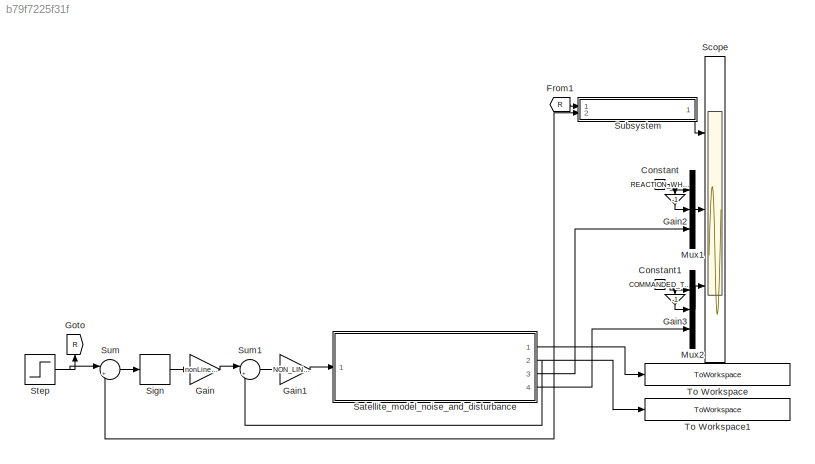
MODEL slx_b79f7225f31f
KIND model
CONFIG AbsTol = auto
CONFIG EnableMultiTasking = off
CONFIG FixedStep = auto
CONFIG MaxStep = auto
CONFIG MinStep = auto
CONFIG RelTol = 1e-3
CONFIG SampleTimeConstraint = Unconstrained
CONFIG SolverName = VariableStepAuto
CONFIG StartTime = 0.0
CONFIG StopTime = 200
BLOCK [Constant] Constant
  Value = REACTION_WHEEL_VELOCITY_SATURATION
BLOCK [Constant] Constant1
  Value = COMMANDED_TORQUE_SATURATION
BLOCK [From] From1
  GotoTag = R
BLOCK [Gain] Gain
  Gain = nonLinearControlSpeedCommand
BLOCK [Gain] Gain1
  Gain = NON_LINEAR_CONTROL_GAIN
BLOCK [Gain] Gain2
  Gain = -1
  NameLocation = left
BLOCK [Gain] Gain3
  Gain = -1
  NameLocation = left
BLOCK [Goto] Goto
  GotoTag = R
  NameLocation = right
BLOCK [Mux] Mux1
  DisplayOption = bar
  Inputs = 3
  Ports = [3, 1]
BLOCK [Mux] Mux2
  DisplayOption = bar
  Inputs = 3
  Ports = [3, 1]
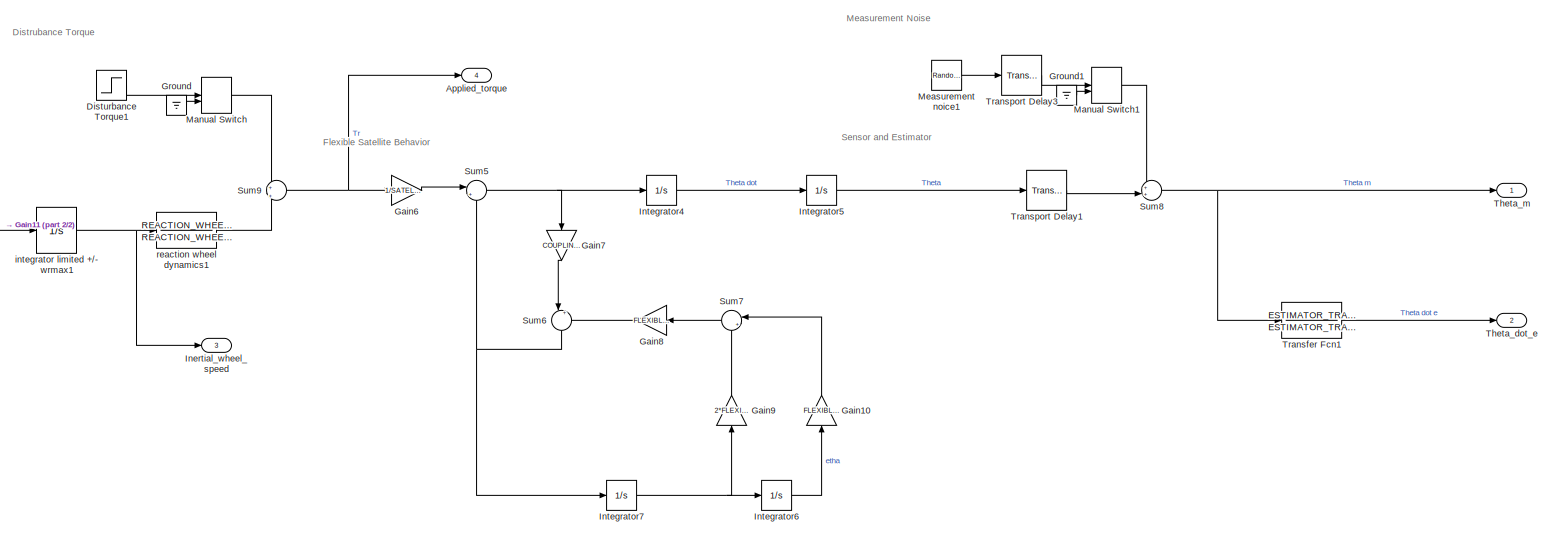
[diagram: Satellite_model_noise_and_disturbance - part 1/2, most of the canvas]
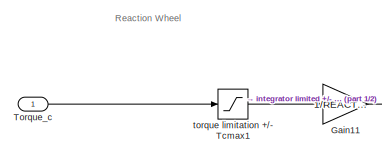
[diagram: Satellite_model_noise_and_disturbance - part 2/2, middle left region]
BLOCK [SubSystem] Satellite_model_noise_and_disturbance
  Ports = [1, 4]
  RequestExecContextInheritance = off
BLOCK [Outport] Satellite_model_noise_and_disturbance/Applied_torque
  Port = 4
BLOCK [Step] Satellite_model_noise_and_disturbance/Disturbance Torque1
  After = DISTURBANCE_TORQUE
  SampleTime = 0
  Time = DISTURBANCE_TORQUE_DELAY
BLOCK [Gain] Satellite_model_noise_and_disturbance/Gain10
  Gain = FLEXIBLE_MODE_FREQUENCY
  NameLocation = right
BLOCK [Gain] Satellite_model_noise_and_disturbance/Gain11
  Gain = 1/REACTION_WHEEL_INERTIA
BLOCK [Gain] Satellite_model_noise_and_disturbance/Gain6
  Gain = 1/SATELLITE_INERTIA
BLOCK [Gain] Satellite_model_noise_and_disturbance/Gain7
  Gain = COUPLING_COEFFICIENT
  NameLocation = left
BLOCK [Gain] Satellite_model_noise_and_disturbance/Gain8
  Gain = FLEXIBLE_MODE_FREQUENCY
  NameLocation = top
BLOCK [Gain] Satellite_model_noise_and_disturbance/Gain9
  Gain = 2*FLEXIBLE_MODE_DAMPING_RATIO
  NameLocation = right
BLOCK [Ground] Satellite_model_noise_and_disturbance/Ground
BLOCK [Ground] Satellite_model_noise_and_disturbance/Ground1
BLOCK [Outport] Satellite_model_noise_and_disturbance/Inertial_wheel_speed
  Port = 3
BLOCK [Integrator] Satellite_model_noise_and_disturbance/Integrator4
  Ports = [1, 1]
BLOCK [Integrator] Satellite_model_noise_and_disturbance/Integrator5
  Ports = [1, 1]
BLOCK [Integrator] Satellite_model_noise_and_disturbance/Integrator6
  InitialCondition = INITIAL_CONDITION_ON_STATE
  Ports = [1, 1]
BLOCK [Integrator] Satellite_model_noise_and_disturbance/Integrator7
  Ports = [1, 1]
BLOCK [ManualSwitch] Satellite_model_noise_and_disturbance/Manual Switch
  CurrentSetting = 0
BLOCK [ManualSwitch] Satellite_model_noise_and_disturbance/Manual Switch1
BLOCK [RandomNumber] Satellite_model_noise_and_disturbance/Measurement noice1
  SampleTime = 0.01
  Variance = MEASUREMENT_NOISE_VARIANCE
BLOCK [Sum] Satellite_model_noise_and_disturbance/Sum5
  Inputs = |++
  Ports = [2, 1]
BLOCK [Sum] Satellite_model_noise_and_disturbance/Sum6
  Inputs = |+-
  NameLocation = left
  Ports = [2, 1]
BLOCK [Sum] Satellite_model_noise_and_disturbance/Sum7
  Inputs = |++
  NameLocation = top
  Ports = [2, 1]
BLOCK [Sum] Satellite_model_noise_and_disturbance/Sum8
  Inputs = ++|
  Ports = [2, 1]
BLOCK [Sum] Satellite_model_noise_and_disturbance/Sum9
  Inputs = +|+
  Ports = [2, 1]
BLOCK [Outport] Satellite_model_noise_and_disturbance/Theta_dot_e
  Port = 2
BLOCK [Outport] Satellite_model_noise_and_disturbance/Theta_m
BLOCK [Inport] Satellite_model_noise_and_disturbance/Torque_c
BLOCK [TransferFcn] Satellite_model_noise_and_disturbance/Transfer Fcn1
  Denominator = ESTIMATOR_TRANSFER_FUNCTION_DENOMINATOR
  Numerator = ESTIMATOR_TRANSFER_FUNCTION_NUMERATOR
BLOCK [TransportDelay] Satellite_model_noise_and_disturbance/Transport Delay1
  DelayTime = MEASUREMENT_DELAY
  Ports = [1, 1]
BLOCK [TransportDelay] Satellite_model_noise_and_disturbance/Transport Delay3
  DelayTime = STAR_TRACKER_NOISE_DELAY
  Ports = [1, 1]
BLOCK [Integrator] Satellite_model_noise_and_disturbance/integrator limited +//- wrmax1
  LimitOutput = on
  LowerSaturationLimit = -REACTION_WHEEL_VELOCITY_SATURATION
  Ports = [1, 1]
  UpperSaturationLimit = REACTION_WHEEL_VELOCITY_SATURATION
BLOCK [TransferFcn] Satellite_model_noise_and_disturbance/reaction wheel dynamics1
  Denominator = REACTION_WHEEL_DYNAMICS_DENOMINATOR
  Numerator = REACTION_WHEEL_DYNAMICS_NUMERATOR
BLOCK [Saturate] Satellite_model_noise_and_disturbance/torque limitation +//- Tcmax1
  LowerLimit = -COMMANDED_TORQUE_SATURATION
  UpperLimit = COMMANDED_TORQUE_SATURATION
BLOCK [Scope] Scope
  Floating = off
  NumInputPorts = 3
  Ports = [3]
  ScopeSpecificationString = Simulink.scopes.TimeScopeBlockCfg('CurrentConfiguration', extmgr.ConfigurationSet(extmgr.Configuration('Core','General UI',true),extmgr.Configuration('Core','Source UI',true),extmgr.Configuration('Sources','WiredSimulink',true),extmgr.Configuration('Visuals','Time Domain',true,'SerializedDisplays',{struct('MinYLimReal','-0.12468','MaxYLimReal','0.51127','YLabelReal','','MinYLimMag','0.00000','MaxY...<+2901ch>
BLOCK [Signum] Sign
BLOCK [Step] Step
  After = referenceAngle
  SampleTime = 0
  Time = 0
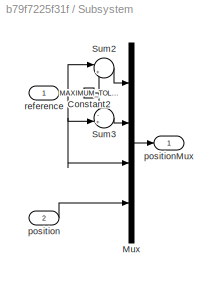
BLOCK [SubSystem] Subsystem
  Ports = [2, 1]
  RequestExecContextInheritance = off
BLOCK [Constant] Subsystem/Constant2
  Value = MAXIMUM_TOLERABLE_POINTING_ERROR
BLOCK [Mux] Subsystem/Mux
  DisplayOption = bar
  Ports = [4, 1]
BLOCK [Sum] Subsystem/Sum2
  Inputs = |++
  Ports = [2, 1]
BLOCK [Sum] Subsystem/Sum3
  Inputs = -+|
  Ports = [2, 1]
BLOCK [Inport] Subsystem/position
  Port = 2
BLOCK [Outport] Subsystem/positionMux
BLOCK [Inport] Subsystem/reference
BLOCK [Sum] Sum
  Inputs = |+-
  Ports = [2, 1]
BLOCK [Sum] Sum1
  Inputs = |+-
  Ports = [2, 1]
BLOCK [ToWorkspace] To Workspace
  FixptAsFi = on
  MaxDataPoints = inf
  Ports = [1]
  SampleTime = -1
  SaveFormat = Timeseries
  VariableName = measuredSatelliteAngle
BLOCK [ToWorkspace] To Workspace1
  FixptAsFi = on
  MaxDataPoints = inf
  Ports = [1]
  SampleTime = -1
  SaveFormat = Timeseries
  VariableName = estimatedSatelliteAngularSpeed
ANNOTATION Satellite_model_noise_and_disturbance: Distrubance Torque
ANNOTATION Satellite_model_noise_and_disturbance: Flexible Satellite Behavior
ANNOTATION Satellite_model_noise_and_disturbance: Measurement Noise
ANNOTATION Satellite_model_noise_and_disturbance: Reaction Wheel
ANNOTATION Satellite_model_noise_and_disturbance: Sensor and Estimator
NET Constant1:1 -> Gain3:1, Mux2:1
NET Constant:1 -> Gain2:1, Mux1:1
LINE From1:1 -> Subsystem:1
LINE Gain1:1 -> Satellite_model_noise_and_disturbance:1
LINE Gain2:1 -> Mux1:2
LINE Gain3:1 -> Mux2:2
LINE Gain:1 -> Sum1:1
LINE Mux1:1 -> Scope:2
LINE Mux2:1 -> Scope:3
LINE Satellite_model_noise_and_disturbance/Disturbance Torque1:1 -> Satellite_model_noise_and_disturbance/Manual Switch:1
LINE Satellite_model_noise_and_disturbance/Gain10:1 -> Satellite_model_noise_and_disturbance/Sum7:1
LINE Satellite_model_noise_and_disturbance/Gain11:1 -> Satellite_model_noise_and_disturbance/integrator limited +//- wrmax1:1
LINE Satellite_model_noise_and_disturbance/Gain6:1 -> Satellite_model_noise_and_disturbance/Sum5:1
LINE Satellite_model_noise_and_disturbance/Gain7:1 -> Satellite_model_noise_and_disturbance/Sum6:1
LINE Satellite_model_noise_and_disturbance/Gain8:1 -> Satellite_model_noise_and_disturbance/Sum6:2
LINE Satellite_model_noise_and_disturbance/Gain9:1 -> Satellite_model_noise_and_disturbance/Sum7:2
LINE Satellite_model_noise_and_disturbance/Ground1:1 -> Satellite_model_noise_and_disturbance/Manual Switch1:2
LINE Satellite_model_noise_and_disturbance/Ground:1 -> Satellite_model_noise_and_disturbance/Manual Switch:2
LINE Satellite_model_noise_and_disturbance/Integrator4:1 -> Satellite_model_noise_and_disturbance/Integrator5:1
LINE Satellite_model_noise_and_disturbance/Integrator5:1 -> Satellite_model_noise_and_disturbance/Transport Delay1:1
LINE Satellite_model_noise_and_disturbance/Integrator6:1 -> Satellite_model_noise_and_disturbance/Gain10:1
NET Satellite_model_noise_and_disturbance/Integrator7:1 -> Satellite_model_noise_and_disturbance/Gain9:1, Satellite_model_noise_and_disturbance/Integrator6:1
LINE Satellite_model_noise_and_disturbance/Manual Switch1:1 -> Satellite_model_noise_and_disturbance/Sum8:1
LINE Satellite_model_noise_and_disturbance/Manual Switch:1 -> Satellite_model_noise_and_disturbance/Sum9:1
LINE Satellite_model_noise_and_disturbance/Measurement noice1:1 -> Satellite_model_noise_and_disturbance/Transport Delay3:1
NET Satellite_model_noise_and_disturbance/Sum5:1 -> Satellite_model_noise_and_disturbance/Gain7:1, Satellite_model_noise_and_disturbance/Integrator4:1
NET Satellite_model_noise_and_disturbance/Sum6:1 -> Satellite_model_noise_and_disturbance/Integrator7:1, Satellite_model_noise_and_disturbance/Sum5:2
LINE Satellite_model_noise_and_disturbance/Sum7:1 -> Satellite_model_noise_and_disturbance/Gain8:1
NET Satellite_model_noise_and_disturbance/Sum8:1 -> Satellite_model_noise_and_disturbance/Theta_m:1, Satellite_model_noise_and_disturbance/Transfer Fcn1:1
NET Satellite_model_noise_and_disturbance/Sum9:1 -> Satellite_model_noise_and_disturbance/Applied_torque:1, Satellite_model_noise_and_disturbance/Gain6:1
LINE Satellite_model_noise_and_disturbance/Torque_c:1 -> Satellite_model_noise_and_disturbance/torque limitation +//- Tcmax1:1
LINE Satellite_model_noise_and_disturbance/Transfer Fcn1:1 -> Satellite_model_noise_and_disturbance/Theta_dot_e:1
LINE Satellite_model_noise_and_disturbance/Transport Delay1:1 -> Satellite_model_noise_and_disturbance/Sum8:2
LINE Satellite_model_noise_and_disturbance/Transport Delay3:1 -> Satellite_model_noise_and_disturbance/Manual Switch1:1
NET Satellite_model_noise_and_disturbance/integrator limited +//- wrmax1:1 -> Satellite_model_noise_and_disturbance/Inertial_wheel_speed:1, Satellite_model_noise_and_disturbance/reaction wheel dynamics1:1
LINE Satellite_model_noise_and_disturbance/reaction wheel dynamics1:1 -> Satellite_model_noise_and_disturbance/Sum9:2
LINE Satellite_model_noise_and_disturbance/torque limitation +//- Tcmax1:1 -> Satellite_model_noise_and_disturbance/Gain11:1
NET Satellite_model_noise_and_disturbance:1 -> Subsystem:2, Sum:2, To Workspace:1
NET Satellite_model_noise_and_disturbance:2 -> Sum1:2, To Workspace1:1
LINE Satellite_model_noise_and_disturbance:3 -> Mux1:3
LINE Satellite_model_noise_and_disturbance:4 -> Mux2:3
LINE Sign:1 -> Gain:1
NET Step:1 -> Goto:1, Sum:1
NET Subsystem/Constant2:1 -> Subsystem/Sum2:2, Subsystem/Sum3:1
LINE Subsystem/Mux:1 -> Subsystem/positionMux:1
LINE Subsystem/Sum2:1 -> Subsystem/Mux:1
LINE Subsystem/Sum3:1 -> Subsystem/Mux:2
LINE Subsystem/position:1 -> Subsystem/Mux:4
NET Subsystem/reference:1 -> Subsystem/Mux:3, Subsystem/Sum2:1, Subsystem/Sum3:2
LINE Subsystem:1 -> Scope:1
LINE Sum1:1 -> Gain1:1
LINE Sum:1 -> Sign:1
note: NET lines group one-source signal fan-out (src -> all destinations, sorted); 1:1 wires keep LINE
